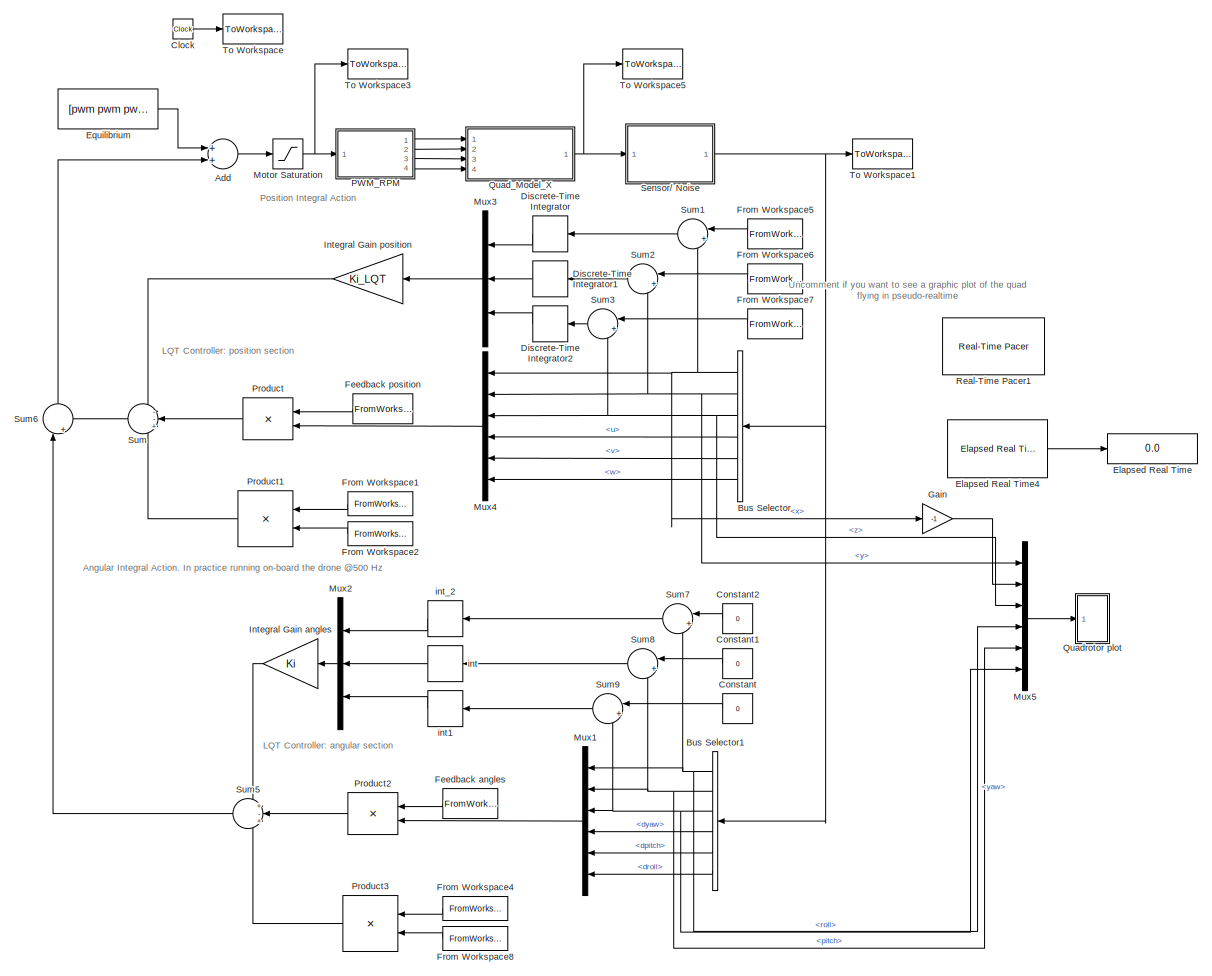
[diagram: root canvas - part 1/1, most of the canvas]
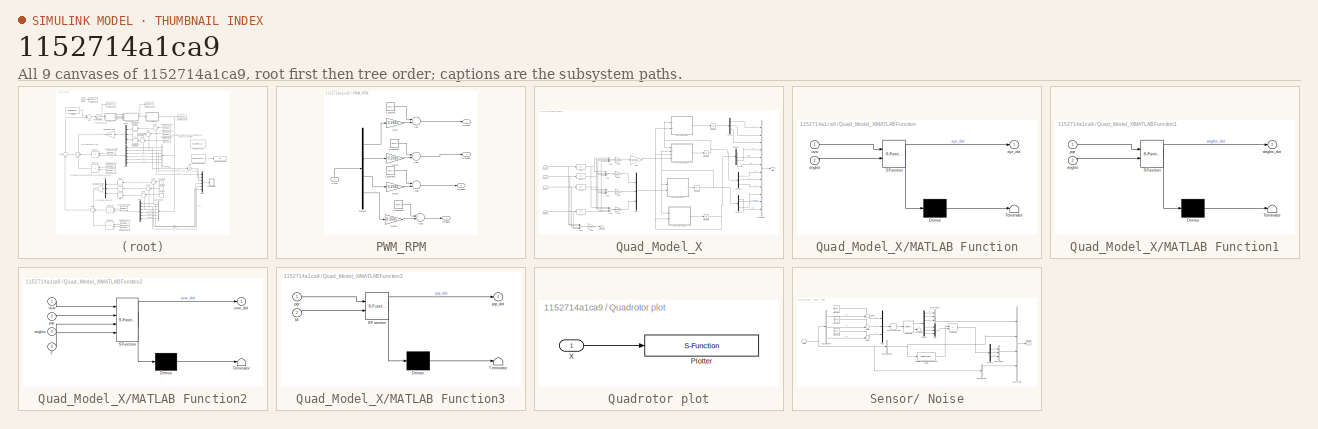
[diagram: thumbnail index - all 9 canvases of the model, root first then tree order]
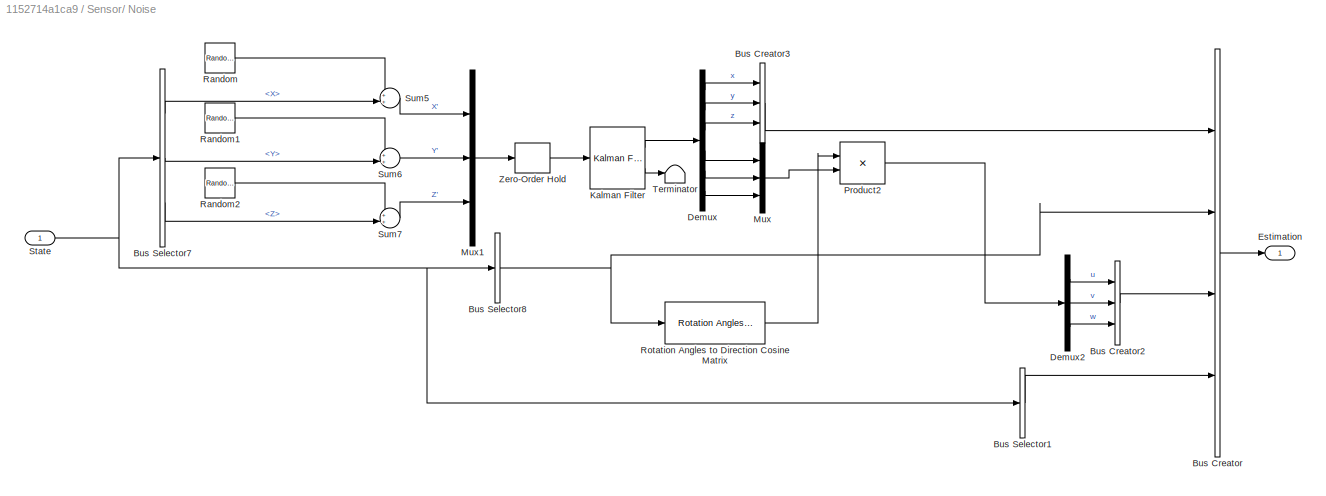
MODEL slx_1152714a1ca9
KIND model
CONFIG AbsTol = auto
CONFIG FixedStep = Ts
CONFIG MaxStep = auto
CONFIG MinStep = auto
CONFIG RelTol = 1e-3
CONFIG SampleTimeConstraint = Unconstrained
CONFIG Solver = FixedStepAuto
CONFIG SolverMode = Auto
CONFIG SolverName = FixedStepAuto
CONFIG StartTime = 0.0
CONFIG StopTime = tsim
BLOCK [Sum] Add
  InputSameDT = off
  OutDataTypeStr = Inherit: Inherit via internal rule
  Ports = [2, 1]
  SaturateOnIntegerOverflow = off
BLOCK [BusSelector] Bus Selector
  OutputSignals = signal1.x,signal1.y,signal1.z,signal3.u,signal3.v,signal3.w
  Ports = [1, 6]
BLOCK [BusSelector] Bus Selector1
  OutputSignals = signal2.yaw,signal2.pitch,signal2.roll,signal4.dyaw,signal4.dpitch,signal4.droll
  Ports = [1, 6]
BLOCK [Clock] Clock
BLOCK [Constant] Constant
  Value = 0
BLOCK [Constant] Constant1
  Value = 0
BLOCK [Constant] Constant2
  Value = 0
BLOCK [DiscreteIntegrator] Discrete-Time Integrator
  ICPrevOutput = DiscIntNeverNeededParam
  ICPrevScaledInput = DiscIntNeverNeededParam
  InitialConditionSetting = State (most efficient)
  Ports = [1, 1]
  SampleTime = Ts
  gainval = 1
BLOCK [DiscreteIntegrator] Discrete-Time Integrator1
  ICPrevOutput = DiscIntNeverNeededParam
  ICPrevScaledInput = DiscIntNeverNeededParam
  InitialConditionSetting = State (most efficient)
  Ports = [1, 1]
  SampleTime = Ts
  gainval = 1
BLOCK [DiscreteIntegrator] Discrete-Time Integrator2
  ICPrevOutput = DiscIntNeverNeededParam
  ICPrevScaledInput = DiscIntNeverNeededParam
  InitialConditionSetting = State (most efficient)
  Ports = [1, 1]
  SampleTime = Ts
  gainval = 1
BLOCK [Display] Elapsed Real Time
  Commented = on
  Decimation = 2
  Ports = [1]
BLOCK [Reference] Elapsed Real Time4  REF=realtime_pacer_lib/Elapsed Real Time
  Commented = on
  Ports = [0, 1]
  SourceBlock = realtime_pacer_lib/Elapsed Real Time
  SourceType = RealTime_Elapsed
BLOCK [Constant] Equilibrium
  Value = [pwm pwm pwm pwm]'
BLOCK [FromWorkspace] Feedback angles
  SampleTime = Ts
  VariableName = L_sim1
  ZeroCross = on
BLOCK [FromWorkspace] Feedback position
  SampleTime = Ts
  VariableName = L_sim
  ZeroCross = on
BLOCK [FromWorkspace] From Workspace1
  SampleTime = Ts
  VariableName = Lg_sim
  ZeroCross = on
BLOCK [FromWorkspace] From Workspace2
  SampleTime = Ts
  VariableName = g_sim
  ZeroCross = on
BLOCK [FromWorkspace] From Workspace4
  SampleTime = Ts
  VariableName = Lg_sim1
  ZeroCross = on
BLOCK [FromWorkspace] From Workspace5
  SampleTime = Ts
  VariableName = x_des
  ZeroCross = on
BLOCK [FromWorkspace] From Workspace6
  SampleTime = Ts
  VariableName = y_des
  ZeroCross = on
BLOCK [FromWorkspace] From Workspace7
  SampleTime = Ts
  VariableName = z_des
  ZeroCross = on
BLOCK [FromWorkspace] From Workspace8
  SampleTime = Ts
  VariableName = g_sim1
  ZeroCross = on
BLOCK [Gain] Gain
  Commented = on
  Gain = -1
  OutDataTypeStr = Inherit: Inherit via internal rule
  ParamDataTypeStr = Inherit: Inherit via internal rule
  SaturateOnIntegerOverflow = off
BLOCK [Gain] Integral Gain angles
  Gain = Ki
  Multiplication = Matrix(K*u)
  OutDataTypeStr = Inherit: Inherit via internal rule
  ParamDataTypeStr = Inherit: Inherit via internal rule
  SaturateOnIntegerOverflow = off
BLOCK [Gain] Integral Gain position
  Gain = Ki_LQT
  Multiplication = Matrix(K*u)
  OutDataTypeStr = Inherit: Inherit via internal rule
  ParamDataTypeStr = Inherit: Inherit via internal rule
  SaturateOnIntegerOverflow = off
BLOCK [Saturate] Motor Saturation
  InputPortMap = u0
  Ports = [1, 1]
  UpperLimit = 60000
BLOCK [Mux] Mux1
  DisplayOption = bar
  Inputs = 6
  Ports = [6, 1]
BLOCK [Mux] Mux2
  DisplayOption = bar
  Inputs = 3
  Ports = [3, 1]
BLOCK [Mux] Mux3
  DisplayOption = bar
  Inputs = 3
  Ports = [3, 1]
BLOCK [Mux] Mux4
  DisplayOption = bar
  Inputs = 6
  Ports = [6, 1]
BLOCK [Mux] Mux5
  Commented = on
  DisplayOption = bar
  Inputs = 6
  Ports = [6, 1]
BLOCK [SubSystem] PWM_RPM
  Ports = [1, 4]
  RequestExecContextInheritance = off
  Variant = off
BLOCK [Sum] PWM_RPM/Add
  InputSameDT = off
  OutDataTypeStr = Inherit: Inherit via internal rule
  Ports = [2, 1]
  SaturateOnIntegerOverflow = off
BLOCK [Sum] PWM_RPM/Add1
  InputSameDT = off
  OutDataTypeStr = Inherit: Inherit via internal rule
  Ports = [2, 1]
  SaturateOnIntegerOverflow = off
BLOCK [Sum] PWM_RPM/Add2
  InputSameDT = off
  OutDataTypeStr = Inherit: Inherit via internal rule
  Ports = [2, 1]
  SaturateOnIntegerOverflow = off
BLOCK [Sum] PWM_RPM/Add3
  InputSameDT = off
  OutDataTypeStr = Inherit: Inherit via internal rule
  Ports = [2, 1]
  SaturateOnIntegerOverflow = off
BLOCK [Constant] PWM_RPM/Constant
  Value = 4070.3
BLOCK [Constant] PWM_RPM/Constant1
  Value = 4070.3
BLOCK [Constant] PWM_RPM/Constant2
  Value = 4070.3
BLOCK [Constant] PWM_RPM/Constant3
  Value = 4070.3
BLOCK [Demux] PWM_RPM/Demux
  DisplayOption = bar
  Ports = [1, 4]
BLOCK [Gain] PWM_RPM/Gain
  Gain = 0.2685
  OutDataTypeStr = Inherit: Inherit via internal rule
  ParamDataTypeStr = Inherit: Inherit via internal rule
  SaturateOnIntegerOverflow = off
BLOCK [Gain] PWM_RPM/Gain2
  Gain = 0.2685
  OutDataTypeStr = Inherit: Inherit via internal rule
  ParamDataTypeStr = Inherit: Inherit via internal rule
  SaturateOnIntegerOverflow = off
BLOCK [Gain] PWM_RPM/Gain3
  Gain = 0.2685
  OutDataTypeStr = Inherit: Inherit via internal rule
  ParamDataTypeStr = Inherit: Inherit via internal rule
  SaturateOnIntegerOverflow = off
BLOCK [Gain] PWM_RPM/Gain5
  Gain = 0.2685
  OutDataTypeStr = Inherit: Inherit via internal rule
  ParamDataTypeStr = Inherit: Inherit via internal rule
  SaturateOnIntegerOverflow = off
BLOCK [Outport] PWM_RPM/Omega1
  IconDisplay = Port number
BLOCK [Outport] PWM_RPM/Omega2
  IconDisplay = Port number
  Port = 2
BLOCK [Outport] PWM_RPM/Omega3
  IconDisplay = Port number
  Port = 3
BLOCK [Outport] PWM_RPM/Omega4
  IconDisplay = Port number
  Port = 4
BLOCK [Inport] PWM_RPM/PWM
  IconDisplay = Port number
BLOCK [Product] Product
  InputSameDT = off
  Multiplication = Matrix(*)
  OutDataTypeStr = Inherit: Inherit via internal rule
  Ports = [2, 1]
  RndMeth = Floor
  SaturateOnIntegerOverflow = off
BLOCK [Product] Product1
  InputSameDT = off
  Multiplication = Matrix(*)
  OutDataTypeStr = Inherit: Inherit via internal rule
  Ports = [2, 1]
  RndMeth = Floor
  SaturateOnIntegerOverflow = off
BLOCK [Product] Product2
  InputSameDT = off
  Multiplication = Matrix(*)
  OutDataTypeStr = Inherit: Inherit via internal rule
  Ports = [2, 1]
  RndMeth = Floor
  SaturateOnIntegerOverflow = off
BLOCK [Product] Product3
  InputSameDT = off
  Multiplication = Matrix(*)
  OutDataTypeStr = Inherit: Inherit via internal rule
  Ports = [2, 1]
  RndMeth = Floor
  SaturateOnIntegerOverflow = off
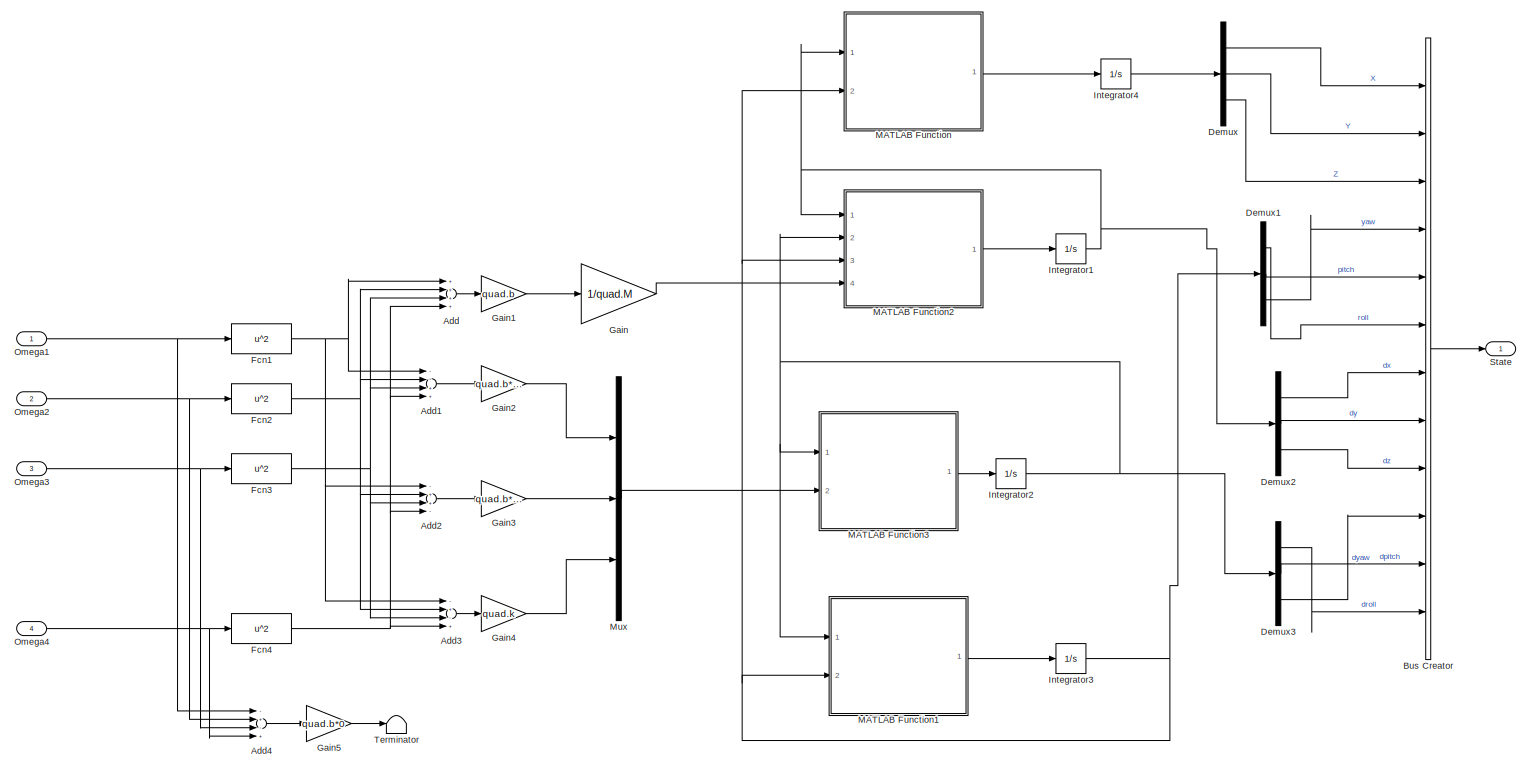
[diagram: Quad_Model_X - part 1/1, most of the canvas]
BLOCK [SubSystem] Quad_Model_X
  Ports = [4, 1]
  RequestExecContextInheritance = off
  Variant = off
BLOCK [Sum] Quad_Model_X/Add
  InputSameDT = off
  Inputs = ++++
  OutDataTypeStr = Inherit: Inherit via internal rule
  Ports = [4, 1]
  SaturateOnIntegerOverflow = off
BLOCK [Sum] Quad_Model_X/Add1
  InputSameDT = off
  Inputs = --++
  OutDataTypeStr = Inherit: Inherit via internal rule
  Ports = [4, 1]
  SaturateOnIntegerOverflow = off
BLOCK [Sum] Quad_Model_X/Add2
  InputSameDT = off
  Inputs = -++-
  OutDataTypeStr = Inherit: Inherit via internal rule
  Ports = [4, 1]
  SaturateOnIntegerOverflow = off
BLOCK [Sum] Quad_Model_X/Add3
  InputSameDT = off
  Inputs = -+-+
  OutDataTypeStr = Inherit: Inherit via internal rule
  Ports = [4, 1]
  SaturateOnIntegerOverflow = off
BLOCK [Sum] Quad_Model_X/Add4
  InputSameDT = off
  Inputs = -+-+
  OutDataTypeStr = Inherit: Inherit via internal rule
  Ports = [4, 1]
  SaturateOnIntegerOverflow = off
BLOCK [BusCreator] Quad_Model_X/Bus Creator
  DisplayOption = bar
  InheritFromInputs = on
  Inputs = 12
  Ports = [12, 1]
BLOCK [Demux] Quad_Model_X/Demux
  DisplayOption = bar
  Outputs = 3
  Ports = [1, 3]
BLOCK [Demux] Quad_Model_X/Demux1
  DisplayOption = bar
  Outputs = 3
  Ports = [1, 3]
BLOCK [Demux] Quad_Model_X/Demux2
  DisplayOption = bar
  Outputs = 3
  Ports = [1, 3]
BLOCK [Demux] Quad_Model_X/Demux3
  DisplayOption = bar
  Outputs = 3
  Ports = [1, 3]
BLOCK [Fcn] Quad_Model_X/Fcn1
  Expr = u^2
BLOCK [Fcn] Quad_Model_X/Fcn2
  Expr = u^2
BLOCK [Fcn] Quad_Model_X/Fcn3
  Expr = u^2
BLOCK [Fcn] Quad_Model_X/Fcn4
  Expr = u^2
BLOCK [Gain] Quad_Model_X/Gain
  Gain = 1/quad.M
  OutDataTypeStr = Inherit: Inherit via internal rule
  ParamDataTypeStr = Inherit: Inherit via internal rule
  SaturateOnIntegerOverflow = off
BLOCK [Gain] Quad_Model_X/Gain1
  Gain = quad.b
  OutDataTypeStr = Inherit: Inherit via internal rule
  ParamDataTypeStr = Inherit: Inherit via internal rule
  SaturateOnIntegerOverflow = off
BLOCK [Gain] Quad_Model_X/Gain2
  Gain = quad.b*quad.d*sin(pi/4)
  OutDataTypeStr = Inherit: Inherit via internal rule
  ParamDataTypeStr = Inherit: Inherit via internal rule
  SaturateOnIntegerOverflow = off
BLOCK [Gain] Quad_Model_X/Gain3
  Gain = quad.b*quad.d*sin(pi/4)
  OutDataTypeStr = Inherit: Inherit via internal rule
  ParamDataTypeStr = Inherit: Inherit via internal rule
  SaturateOnIntegerOverflow = off
BLOCK [Gain] Quad_Model_X/Gain4
  Gain = quad.k
  OutDataTypeStr = Inherit: Inherit via internal rule
  ParamDataTypeStr = Inherit: Inherit via internal rule
  SaturateOnIntegerOverflow = off
BLOCK [Gain] Quad_Model_X/Gain5
  Gain = quad.b*0
  OutDataTypeStr = Inherit: Inherit via internal rule
  ParamDataTypeStr = Inherit: Inherit via internal rule
  SaturateOnIntegerOverflow = off
BLOCK [Integrator] Quad_Model_X/Integrator1
  Ports = [1, 1]
BLOCK [Integrator] Quad_Model_X/Integrator2
  Ports = [1, 1]
BLOCK [Integrator] Quad_Model_X/Integrator3
  InitialCondition = [0;0;0]
  Ports = [1, 1]
BLOCK [Integrator] Quad_Model_X/Integrator4
  InitialCondition = [0;0;0]
  Ports = [1, 1]
BLOCK [SubSystem] Quad_Model_X/MATLAB Function
  ErrorFcn = Stateflow.Translate.translate
  PermitHierarchicalResolution = ExplicitOnly
  Ports = [2, 1]
  RequestExecContextInheritance = off
  SFBlockType = MATLAB Function
  TreatAsAtomicUnit = on
  Variant = off
BLOCK [Demux] Quad_Model_X/MATLAB Function/ Demux 
  Outputs = 1
  Ports = [1, 1]
BLOCK [S-Function] Quad_Model_X/MATLAB Function/ SFunction 
  EnableBusSupport = on
  FunctionName = sf_sfun
  PortCounts = [2 2]
  Ports = [2, 2]
  SFunctionDeploymentMode = off
  Tag = Stateflow S-Function LQT_Simulation 1
BLOCK [Terminator] Quad_Model_X/MATLAB Function/ Terminator 
BLOCK [Inport] Quad_Model_X/MATLAB Function/angles
  IconDisplay = Port number
  Port = 2
BLOCK [Inport] Quad_Model_X/MATLAB Function/uvw
  IconDisplay = Port number
BLOCK [Outport] Quad_Model_X/MATLAB Function/xyz_dot
  IconDisplay = Port number
BLOCK [SubSystem] Quad_Model_X/MATLAB Function1
  ErrorFcn = Stateflow.Translate.translate
  PermitHierarchicalResolution = ExplicitOnly
  Ports = [2, 1]
  RequestExecContextInheritance = off
  SFBlockType = MATLAB Function
  TreatAsAtomicUnit = on
  Variant = off
BLOCK [Demux] Quad_Model_X/MATLAB Function1/ Demux 
  Outputs = 1
  Ports = [1, 1]
BLOCK [S-Function] Quad_Model_X/MATLAB Function1/ SFunction 
  EnableBusSupport = on
  FunctionName = sf_sfun
  PortCounts = [2 2]
  Ports = [2, 2]
  SFunctionDeploymentMode = off
  Tag = Stateflow S-Function LQT_Simulation 2
BLOCK [Terminator] Quad_Model_X/MATLAB Function1/ Terminator 
BLOCK [Inport] Quad_Model_X/MATLAB Function1/angles
  IconDisplay = Port number
  Port = 2
BLOCK [Outport] Quad_Model_X/MATLAB Function1/angles_dot
  IconDisplay = Port number
BLOCK [Inport] Quad_Model_X/MATLAB Function1/pqr
  IconDisplay = Port number
BLOCK [SubSystem] Quad_Model_X/MATLAB Function2
  ErrorFcn = Stateflow.Translate.translate
  PermitHierarchicalResolution = ExplicitOnly
  Ports = [4, 1]
  RequestExecContextInheritance = off
  SFBlockType = MATLAB Function
  TreatAsAtomicUnit = on
  Variant = off
BLOCK [Demux] Quad_Model_X/MATLAB Function2/ Demux 
  Outputs = 1
  Ports = [1, 1]
BLOCK [S-Function] Quad_Model_X/MATLAB Function2/ SFunction 
  EnableBusSupport = on
  FunctionName = sf_sfun
  PortCounts = [4 2]
  Ports = [4, 2]
  SFunctionDeploymentMode = off
  Tag = Stateflow S-Function LQT_Simulation 5
BLOCK [Terminator] Quad_Model_X/MATLAB Function2/ Terminator 
BLOCK [Inport] Quad_Model_X/MATLAB Function2/F
  IconDisplay = Port number
  Port = 4
BLOCK [Inport] Quad_Model_X/MATLAB Function2/angles
  IconDisplay = Port number
  Port = 3
BLOCK [Inport] Quad_Model_X/MATLAB Function2/pqr
  IconDisplay = Port number
  Port = 2
BLOCK [Inport] Quad_Model_X/MATLAB Function2/uvw
  IconDisplay = Port number
BLOCK [Outport] Quad_Model_X/MATLAB Function2/uvw_dot
  IconDisplay = Port number
BLOCK [SubSystem] Quad_Model_X/MATLAB Function3
  ErrorFcn = Stateflow.Translate.translate
  PermitHierarchicalResolution = ExplicitOnly
  Ports = [2, 1]
  RequestExecContextInheritance = off
  SFBlockType = MATLAB Function
  TreatAsAtomicUnit = on
  Variant = off
BLOCK [Demux] Quad_Model_X/MATLAB Function3/ Demux 
  Outputs = 1
  Ports = [1, 1]
BLOCK [S-Function] Quad_Model_X/MATLAB Function3/ SFunction 
  EnableBusSupport = on
  FunctionName = sf_sfun
  PortCounts = [2 2]
  Ports = [2, 2]
  SFunctionDeploymentMode = off
  Tag = Stateflow S-Function LQT_Simulation 6
BLOCK [Terminator] Quad_Model_X/MATLAB Function3/ Terminator 
BLOCK [Inport] Quad_Model_X/MATLAB Function3/M
  IconDisplay = Port number
  Port = 2
BLOCK [Inport] Quad_Model_X/MATLAB Function3/pqr
  IconDisplay = Port number
BLOCK [Outport] Quad_Model_X/MATLAB Function3/pqr_dot
  IconDisplay = Port number
BLOCK [Mux] Quad_Model_X/Mux
  DisplayOption = bar
  Inputs = 3
  Ports = [3, 1]
BLOCK [Inport] Quad_Model_X/Omega1
  IconDisplay = Port number
BLOCK [Inport] Quad_Model_X/Omega2
  IconDisplay = Port number
  Port = 2
BLOCK [Inport] Quad_Model_X/Omega3
  IconDisplay = Port number
  Port = 3
BLOCK [Inport] Quad_Model_X/Omega4
  IconDisplay = Port number
  Port = 4
BLOCK [Outport] Quad_Model_X/State
  IconDisplay = Port number
BLOCK [Terminator] Quad_Model_X/Terminator
BLOCK [SubSystem] Quadrotor plot
  AncestorBlock = roblocks/Robot Graphics/Quadrotor plot
  Commented = on
  Ports = [1]
  RequestExecContextInheritance = off
  Variant = off
BLOCK [S-Function] Quadrotor plot/Plotter
  EnableBusSupport = off
  FunctionName = quadrotor_plot
  Parameters = [xydim, zdim], 1, 1,quad
  Ports = [1]
  SFunctionDeploymentMode = off
BLOCK [Inport] Quadrotor plot/X
  IconDisplay = Port number
BLOCK [Reference] Real-Time Pacer1  REF=realtime_pacer_lib/Real-Time Pacer
  Commented = on
  Ports = []
  SourceBlock = realtime_pacer_lib/Real-Time Pacer
  SourceType = RealTime_Pacer
BLOCK [SubSystem] Sensor// Noise
  Ports = [1, 1]
  RequestExecContextInheritance = off
  Variant = off
BLOCK [BusCreator] Sensor// Noise/Bus Creator
  DisplayOption = bar
  InheritFromInputs = on
  Inputs = 4
  Ports = [4, 1]
BLOCK [BusCreator] Sensor// Noise/Bus Creator2
  DisplayOption = bar
  InheritFromInputs = on
  Inputs = 3
  Ports = [3, 1]
BLOCK [BusCreator] Sensor// Noise/Bus Creator3
  DisplayOption = bar
  InheritFromInputs = on
  Inputs = 3
  Ports = [3, 1]
BLOCK [BusSelector] Sensor// Noise/Bus Selector1
  OutputAsBus = on
  OutputSignals = dyaw,dpitch,droll
  Ports = [1, 1]
BLOCK [BusSelector] Sensor// Noise/Bus Selector7
  OutputSignals = X,Y,Z
  Ports = [1, 3]
BLOCK [BusSelector] Sensor// Noise/Bus Selector8
  OutputAsBus = on
  OutputSignals = yaw,pitch,roll
  Ports = [1, 1]
BLOCK [Demux] Sensor// Noise/Demux
  DisplayOption = bar
  Outputs = 6
  Ports = [1, 6]
BLOCK [Demux] Sensor// Noise/Demux2
  DisplayOption = bar
  Outputs = 3
  Ports = [1, 3]
BLOCK [Outport] Sensor// Noise/Estimation
  IconDisplay = Port number
BLOCK [Reference] Sensor// Noise/Kalman Filter  REF=ctrlSharedLib/Kalman Filter
  Ports = [1, 2]
  SourceBlock = ctrlSharedLib/Kalman Filter
  SourceType = ctrlKalmanFilter
BLOCK [Mux] Sensor// Noise/Mux
  DisplayOption = bar
  Inputs = 3
  Ports = [3, 1]
BLOCK [Mux] Sensor// Noise/Mux1
  DisplayOption = bar
  Inputs = 3
  Ports = [3, 1]
BLOCK [Product] Sensor// Noise/Product2
  InputSameDT = off
  Multiplication = Matrix(*)
  OutDataTypeStr = Inherit: Inherit via internal rule
  Ports = [2, 1]
  RndMeth = Floor
  SaturateOnIntegerOverflow = off
BLOCK [RandomNumber] Sensor// Noise/Random
  SampleTime = Ts
  Variance = VAR_XY
BLOCK [RandomNumber] Sensor// Noise/Random1
  SampleTime = Ts
  Variance = VAR_XY
BLOCK [RandomNumber] Sensor// Noise/Random2
  SampleTime = Ts
  Variance = VAR_Z
BLOCK [Reference] Sensor// Noise/Rotation Angles to Direction Cosine Matrix  REF=aerolibtransform2/Rotation Angles to
Direction Cosine Matrix
  AttributesFormatString = Rotation Order: %<rotationOrder>
  Ports = [1, 1]
  SourceBlock = aerolibtransform2/Rotation Angles to\nDirection Cosine Matrix
  SourceType = Ang2DCM
BLOCK [Inport] Sensor// Noise/State
  IconDisplay = Port number
BLOCK [Sum] Sensor// Noise/Sum5
  IconShape = round
  InputSameDT = off
  Inputs = ++|
  OutDataTypeStr = Inherit: Inherit via internal rule
  Ports = [2, 1]
  SaturateOnIntegerOverflow = off
BLOCK [Sum] Sensor// Noise/Sum6
  IconShape = round
  InputSameDT = off
  Inputs = ++|
  OutDataTypeStr = Inherit: Inherit via internal rule
  Ports = [2, 1]
  SaturateOnIntegerOverflow = off
BLOCK [Sum] Sensor// Noise/Sum7
  IconShape = round
  InputSameDT = off
  Inputs = ++|
  OutDataTypeStr = Inherit: Inherit via internal rule
  Ports = [2, 1]
  SaturateOnIntegerOverflow = off
BLOCK [Terminator] Sensor// Noise/Terminator
BLOCK [ZeroOrderHold] Sensor// Noise/Zero-Order Hold
  SampleTime = Ts
BLOCK [Sum] Sum
  IconShape = round
  InputSameDT = off
  Inputs = --+
  OutDataTypeStr = Inherit: Inherit via internal rule
  Ports = [3, 1]
  SaturateOnIntegerOverflow = off
BLOCK [Sum] Sum1
  IconShape = round
  InputSameDT = off
  Inputs = |+-
  OutDataTypeStr = Inherit: Inherit via internal rule
  Ports = [2, 1]
  SaturateOnIntegerOverflow = off
BLOCK [Sum] Sum2
  IconShape = round
  InputSameDT = off
  Inputs = |+-
  OutDataTypeStr = Inherit: Inherit via internal rule
  Ports = [2, 1]
  SaturateOnIntegerOverflow = off
BLOCK [Sum] Sum3
  IconShape = round
  InputSameDT = off
  Inputs = |+-
  OutDataTypeStr = Inherit: Inherit via internal rule
  Ports = [2, 1]
  SaturateOnIntegerOverflow = off
BLOCK [Sum] Sum5
  IconShape = round
  InputSameDT = off
  Inputs = +-+
  OutDataTypeStr = Inherit: Inherit via internal rule
  Ports = [3, 1]
  SaturateOnIntegerOverflow = off
BLOCK [Sum] Sum6
  IconShape = round
  InputSameDT = off
  Inputs = |++
  OutDataTypeStr = Inherit: Inherit via internal rule
  Ports = [2, 1]
  SaturateOnIntegerOverflow = off
BLOCK [Sum] Sum7
  IconShape = round
  InputSameDT = off
  Inputs = |+-
  OutDataTypeStr = Inherit: Inherit via internal rule
  Ports = [2, 1]
  SaturateOnIntegerOverflow = off
BLOCK [Sum] Sum8
  IconShape = round
  InputSameDT = off
  Inputs = |+-
  OutDataTypeStr = Inherit: Inherit via internal rule
  Ports = [2, 1]
  SaturateOnIntegerOverflow = off
BLOCK [Sum] Sum9
  IconShape = round
  InputSameDT = off
  Inputs = |+-
  OutDataTypeStr = Inherit: Inherit via internal rule
  Ports = [2, 1]
  SaturateOnIntegerOverflow = off
BLOCK [ToWorkspace] To Workspace
  FixptAsFi = on
  MaxDataPoints = inf
  Ports = [1]
  SampleTime = Ts
  Save2DSignal = 3-D array (concatenate along third dimension)
  VariableName = t_sim
BLOCK [ToWorkspace] To Workspace1
  FixptAsFi = on
  MaxDataPoints = inf
  Ports = [1]
  SampleTime = Ts
  Save2DSignal = 3-D array (concatenate along third dimension)
  VariableName = state_lqt
BLOCK [ToWorkspace] To Workspace3
  FixptAsFi = on
  MaxDataPoints = inf
  Ports = [1]
  SampleTime = Ts
  Save2DSignal = 3-D array (concatenate along third dimension)
  VariableName = pwm_lqt
BLOCK [ToWorkspace] To Workspace5
  FixptAsFi = on
  MaxDataPoints = inf
  Ports = [1]
  SampleTime = Ts
  Save2DSignal = 3-D array (concatenate along third dimension)
  VariableName = state_lqt1
BLOCK [DiscreteIntegrator] int
  ICPrevOutput = DiscIntNeverNeededParam
  ICPrevScaledInput = DiscIntNeverNeededParam
  InitialConditionSetting = State (most efficient)
  Ports = [1, 1]
  SampleTime = Ts
  gainval = 1
BLOCK [DiscreteIntegrator] int1
  ICPrevOutput = DiscIntNeverNeededParam
  ICPrevScaledInput = DiscIntNeverNeededParam
  InitialConditionSetting = State (most efficient)
  Ports = [1, 1]
  SampleTime = Ts
  gainval = 1
BLOCK [DiscreteIntegrator] int_2
  ICPrevOutput = DiscIntNeverNeededParam
  ICPrevScaledInput = DiscIntNeverNeededParam
  InitialConditionSetting = State (most efficient)
  Ports = [1, 1]
  SampleTime = Ts
  gainval = 1
ANNOTATION (root): Angular Integral Action. In practice running on-board the drone @500 Hz
ANNOTATION (root): LQT Controller: angular section
ANNOTATION (root): LQT Controller: position section
ANNOTATION (root): Position Integral Action
ANNOTATION (root): Uncomment if you want to see a graphic plot of the quad flying in pseudo-realtime
LINE Add:1 -> Motor Saturation:1
NET Bus Selector1:1 -> Mux1:1, Mux5:4, Sum7:2
NET Bus Selector1:2 -> Mux1:2, Mux5:5, Sum8:2
NET Bus Selector1:3 -> Mux1:3, Mux5:6, Sum9:2
LINE Bus Selector1:4 -> Mux1:4
LINE Bus Selector1:5 -> Mux1:5
LINE Bus Selector1:6 -> Mux1:6
NET Bus Selector:1 -> Gain:1, Mux4:1, Sum1:2
NET Bus Selector:2 -> Mux4:2, Mux5:1, Sum2:2
NET Bus Selector:3 -> Mux4:3, Mux5:3, Sum3:2
LINE Bus Selector:4 -> Mux4:4
LINE Bus Selector:5 -> Mux4:5
LINE Bus Selector:6 -> Mux4:6
LINE Clock:1 -> To Workspace:1
LINE Constant1:1 -> Sum8:1
LINE Constant2:1 -> Sum7:1
LINE Constant:1 -> Sum9:1
LINE Discrete-Time Integrator1:1 -> Mux3:2
LINE Discrete-Time Integrator2:1 -> Mux3:3
LINE Discrete-Time Integrator:1 -> Mux3:1
LINE Elapsed Real Time4:1 -> Elapsed Real Time:1
LINE Equilibrium:1 -> Add:1
LINE Feedback angles:1 -> Product2:1
LINE Feedback position:1 -> Product:1
LINE From Workspace1:1 -> Product1:1
LINE From Workspace2:1 -> Product1:2
LINE From Workspace4:1 -> Product3:1
LINE From Workspace5:1 -> Sum1:1
LINE From Workspace6:1 -> Sum2:1
LINE From Workspace7:1 -> Sum3:1
LINE From Workspace8:1 -> Product3:2
LINE Gain:1 -> Mux5:2
LINE Integral Gain angles:1 -> Sum5:1
LINE Integral Gain position:1 -> Sum:1
NET Motor Saturation:1 -> PWM_RPM:1, To Workspace3:1
LINE Mux1:1 -> Product2:2
LINE Mux2:1 -> Integral Gain angles:1
LINE Mux3:1 -> Integral Gain position:1
LINE Mux4:1 -> Product:2
LINE Mux5:1 -> Quadrotor plot:1
LINE PWM_RPM/Add1:1 -> PWM_RPM/Omega2:1
LINE PWM_RPM/Add2:1 -> PWM_RPM/Omega3:1
LINE PWM_RPM/Add3:1 -> PWM_RPM/Omega4:1
LINE PWM_RPM/Add:1 -> PWM_RPM/Omega1:1
LINE PWM_RPM/Constant1:1 -> PWM_RPM/Add1:1
LINE PWM_RPM/Constant2:1 -> PWM_RPM/Add2:1
LINE PWM_RPM/Constant3:1 -> PWM_RPM/Add3:1
LINE PWM_RPM/Constant:1 -> PWM_RPM/Add:1
LINE PWM_RPM/Demux:1 -> PWM_RPM/Gain:1
LINE PWM_RPM/Demux:2 -> PWM_RPM/Gain2:1
LINE PWM_RPM/Demux:3 -> PWM_RPM/Gain3:1
LINE PWM_RPM/Demux:4 -> PWM_RPM/Gain5:1
LINE PWM_RPM/Gain2:1 -> PWM_RPM/Add1:2
LINE PWM_RPM/Gain3:1 -> PWM_RPM/Add2:2
LINE PWM_RPM/Gain5:1 -> PWM_RPM/Add3:2
LINE PWM_RPM/Gain:1 -> PWM_RPM/Add:2
LINE PWM_RPM/PWM:1 -> PWM_RPM/Demux:1
LINE PWM_RPM:1 -> Quad_Model_X:1
LINE PWM_RPM:2 -> Quad_Model_X:2
LINE PWM_RPM:3 -> Quad_Model_X:3
LINE PWM_RPM:4 -> Quad_Model_X:4
LINE Product1:1 -> Sum:3
LINE Product2:1 -> Sum5:2
LINE Product3:1 -> Sum5:3
LINE Product:1 -> Sum:2
LINE Quad_Model_X/Add1:1 -> Quad_Model_X/Gain2:1
LINE Quad_Model_X/Add2:1 -> Quad_Model_X/Gain3:1
LINE Quad_Model_X/Add3:1 -> Quad_Model_X/Gain4:1
LINE Quad_Model_X/Add4:1 -> Quad_Model_X/Gain5:1
LINE Quad_Model_X/Add:1 -> Quad_Model_X/Gain1:1
LINE Quad_Model_X/Bus Creator:1 -> Quad_Model_X/State:1
LINE Quad_Model_X/Demux1:1 -> Quad_Model_X/Bus Creator:6
LINE Quad_Model_X/Demux1:2 -> Quad_Model_X/Bus Creator:5
LINE Quad_Model_X/Demux1:3 -> Quad_Model_X/Bus Creator:4
LINE Quad_Model_X/Demux2:1 -> Quad_Model_X/Bus Creator:7
LINE Quad_Model_X/Demux2:2 -> Quad_Model_X/Bus Creator:8
LINE Quad_Model_X/Demux2:3 -> Quad_Model_X/Bus Creator:9
LINE Quad_Model_X/Demux3:1 -> Quad_Model_X/Bus Creator:12
LINE Quad_Model_X/Demux3:2 -> Quad_Model_X/Bus Creator:11
LINE Quad_Model_X/Demux3:3 -> Quad_Model_X/Bus Creator:10
LINE Quad_Model_X/Demux:1 -> Quad_Model_X/Bus Creator:1
LINE Quad_Model_X/Demux:2 -> Quad_Model_X/Bus Creator:2
LINE Quad_Model_X/Demux:3 -> Quad_Model_X/Bus Creator:3
NET Quad_Model_X/Fcn1:1 -> Quad_Model_X/Add1:1, Quad_Model_X/Add2:1, Quad_Model_X/Add3:1, Quad_Model_X/Add:1
NET Quad_Model_X/Fcn2:1 -> Quad_Model_X/Add1:2, Quad_Model_X/Add2:2, Quad_Model_X/Add3:2, Quad_Model_X/Add:2
NET Quad_Model_X/Fcn3:1 -> Quad_Model_X/Add1:3, Quad_Model_X/Add2:3, Quad_Model_X/Add3:3, Quad_Model_X/Add:3
NET Quad_Model_X/Fcn4:1 -> Quad_Model_X/Add1:4, Quad_Model_X/Add2:4, Quad_Model_X/Add3:4, Quad_Model_X/Add:4
LINE Quad_Model_X/Gain1:1 -> Quad_Model_X/Gain:1
LINE Quad_Model_X/Gain2:1 -> Quad_Model_X/Mux:1
LINE Quad_Model_X/Gain3:1 -> Quad_Model_X/Mux:2
LINE Quad_Model_X/Gain4:1 -> Quad_Model_X/Mux:3
LINE Quad_Model_X/Gain5:1 -> Quad_Model_X/Terminator:1
LINE Quad_Model_X/Gain:1 -> Quad_Model_X/MATLAB Function2:4
NET Quad_Model_X/Integrator1:1 -> Quad_Model_X/Demux2:1, Quad_Model_X/MATLAB Function2:1, Quad_Model_X/MATLAB Function:1
NET Quad_Model_X/Integrator2:1 -> Quad_Model_X/Demux3:1, Quad_Model_X/MATLAB Function1:1, Quad_Model_X/MATLAB Function2:2, Quad_Model_X/MATLAB Function3:1
NET Quad_Model_X/Integrator3:1 -> Quad_Model_X/Demux1:1, Quad_Model_X/MATLAB Function1:2, Quad_Model_X/MATLAB Function2:3, Quad_Model_X/MATLAB Function:2
LINE Quad_Model_X/Integrator4:1 -> Quad_Model_X/Demux:1
LINE Quad_Model_X/MATLAB Function1:1 -> Quad_Model_X/Integrator3:1
LINE Quad_Model_X/MATLAB Function2:1 -> Quad_Model_X/Integrator1:1
LINE Quad_Model_X/MATLAB Function3:1 -> Quad_Model_X/Integrator2:1
LINE Quad_Model_X/MATLAB Function:1 -> Quad_Model_X/Integrator4:1
LINE Quad_Model_X/Mux:1 -> Quad_Model_X/MATLAB Function3:2
NET Quad_Model_X/Omega1:1 -> Quad_Model_X/Add4:1, Quad_Model_X/Fcn1:1
NET Quad_Model_X/Omega2:1 -> Quad_Model_X/Add4:2, Quad_Model_X/Fcn2:1
NET Quad_Model_X/Omega3:1 -> Quad_Model_X/Add4:3, Quad_Model_X/Fcn3:1
NET Quad_Model_X/Omega4:1 -> Quad_Model_X/Add4:4, Quad_Model_X/Fcn4:1
NET Quad_Model_X:1 -> Sensor// Noise:1, To Workspace5:1
LINE Sensor// Noise/Bus Creator2:1 -> Sensor// Noise/Bus Creator:3
LINE Sensor// Noise/Bus Creator3:1 -> Sensor// Noise/Bus Creator:1
LINE Sensor// Noise/Bus Creator:1 -> Sensor// Noise/Estimation:1
LINE Sensor// Noise/Bus Selector1:1 -> Sensor// Noise/Bus Creator:4
LINE Sensor// Noise/Bus Selector7:1 -> Sensor// Noise/Sum5:2
LINE Sensor// Noise/Bus Selector7:2 -> Sensor// Noise/Sum6:2
LINE Sensor// Noise/Bus Selector7:3 -> Sensor// Noise/Sum7:2
NET Sensor// Noise/Bus Selector8:1 -> Sensor// Noise/Bus Creator:2, Sensor// Noise/Rotation Angles to Direction Cosine Matrix:1
LINE Sensor// Noise/Demux2:1 -> Sensor// Noise/Bus Creator2:1
LINE Sensor// Noise/Demux2:2 -> Sensor// Noise/Bus Creator2:2
LINE Sensor// Noise/Demux2:3 -> Sensor// Noise/Bus Creator2:3
LINE Sensor// Noise/Demux:1 -> Sensor// Noise/Bus Creator3:1
LINE Sensor// Noise/Demux:2 -> Sensor// Noise/Bus Creator3:2
LINE Sensor// Noise/Demux:3 -> Sensor// Noise/Bus Creator3:3
LINE Sensor// Noise/Demux:4 -> Sensor// Noise/Mux:1
LINE Sensor// Noise/Demux:5 -> Sensor// Noise/Mux:2
LINE Sensor// Noise/Demux:6 -> Sensor// Noise/Mux:3
LINE Sensor// Noise/Kalman Filter:1 -> Sensor// Noise/Demux:1
LINE Sensor// Noise/Kalman Filter:2 -> Sensor// Noise/Terminator:1
LINE Sensor// Noise/Mux1:1 -> Sensor// Noise/Zero-Order Hold:1
LINE Sensor// Noise/Mux:1 -> Sensor// Noise/Product2:2
LINE Sensor// Noise/Product2:1 -> Sensor// Noise/Demux2:1
LINE Sensor// Noise/Random1:1 -> Sensor// Noise/Sum6:1
LINE Sensor// Noise/Random2:1 -> Sensor// Noise/Sum7:1
LINE Sensor// Noise/Random:1 -> Sensor// Noise/Sum5:1
LINE Sensor// Noise/Rotation Angles to Direction Cosine Matrix:1 -> Sensor// Noise/Product2:1
NET Sensor// Noise/State:1 -> Sensor// Noise/Bus Selector1:1, Sensor// Noise/Bus Selector7:1, Sensor// Noise/Bus Selector8:1
LINE Sensor// Noise/Sum5:1 -> Sensor// Noise/Mux1:1
LINE Sensor// Noise/Sum6:1 -> Sensor// Noise/Mux1:2
LINE Sensor// Noise/Sum7:1 -> Sensor// Noise/Mux1:3
LINE Sensor// Noise/Zero-Order Hold:1 -> Sensor// Noise/Kalman Filter:1
NET Sensor// Noise:1 -> Bus Selector1:1, Bus Selector:1, To Workspace1:1
LINE Sum1:1 -> Discrete-Time Integrator:1
LINE Sum2:1 -> Discrete-Time Integrator1:1
LINE Sum3:1 -> Discrete-Time Integrator2:1
LINE Sum5:1 -> Sum6:1
LINE Sum6:1 -> Add:2
LINE Sum7:1 -> int_2:1
LINE Sum8:1 -> int:1
LINE Sum9:1 -> int1:1
LINE Sum:1 -> Sum6:2
LINE int1:1 -> Mux2:3
LINE int:1 -> Mux2:2
LINE int_2:1 -> Mux2:1
note: NET lines group one-source signal fan-out (src -> all destinations, sorted); 1:1 wires keep LINE
CHART Quad_Model_X/MATLAB Function states=1 transitions=1
  STATE_LABEL 'eML_blk_kernel()'
  STATE_LABEL 'SCRIPT:\nfunction xyz_dot  = Position(uvw,angles)\nxyz_dot = zeros(3,1);\nphi = angles(1); %*pi/180;\ntheta = angles(2); %*pi/180;\npsi = angles(3); %*pi/180;\nTb_o = [cos(theta)*cos(psi)                                cos(theta)*sin(psi)                             -sin(theta)  ;   %BBF > Inertial rotation matrix\n        sin(phi)*sin(theta)*cos(psi)-cos(phi)*sin(psi)    sin(phi)*sin(theta)*sin(psi)+cos...<+194ch>'
CHART Quad_Model_X/MATLAB Function1 states=1 transitions=1
  STATE_LABEL 'eML_blk_kernel()'
  STATE_LABEL 'SCRIPT:\nfunction angles_dot  = Angle(pqr,angles)\nangles_dot = zeros(3,1);\nphi = angles(1); %*pi/180;\ntheta = angles(2); %*pi/180;\n\nH = [1    sin(phi)*tan(theta)     cos(phi)*tan(theta)\n     0       cos(phi)                 -sin(phi)   \n     0       sin(phi)/cos(theta)    cos(phi)/cos(theta)];\nangles_dot = H*pqr;\nend'
CHART Quad_Model_X/MATLAB Function2 states=1 transitions=1
  STATE_LABEL 'eML_blk_kernel()'
  STATE_LABEL 'SCRIPT:\nfunction uvw_dot  = Forces(uvw,pqr,angles,F)\nuvw_dot = zeros(3,1);\nForce = [0;0;F];\ng_o = [0;0;-9.81];\nphi = angles(1); %*pi/180;\ntheta = angles(2); %*pi/180;\npsi = angles(3); %*pi/180;\nTb_o = [cos(theta)*cos(psi)                                cos(theta)*sin(psi)                             -sin(theta)  ;   %BBF > Inertial rotation matrix\n        sin(phi)*sin(theta)*cos(psi)-cos(phi)*sin(...<+257ch>'
CHART Quad_Model_X/MATLAB Function3 states=1 transitions=1
  STATE_LABEL 'eML_blk_kernel()'
  STATE_LABEL 'SCRIPT:\nfunction pqr_dot  = Moments(pqr,M)\npqr_dot = zeros(3,1);\nIxx =  1.395e-05;  %2.3951e-5; %1.39e-05; %2.51943e-5; % % %\nIyy = 1.436e-05; %2.3951e-5; %1.436e-05; % 2.54379e-5; % %         %\nIzz =  2.173e-05;  %3.2347e-5; %2.173e-05 ; %4.51407e-5; % %         %;%0.160;\nJ = diag([Ixx Iyy Izz]);    %   I  Flyer rotational inertia matrix     3x3\npqr_dot = inv(J)*(M-cross(pqr,J*pqr));\nend'
